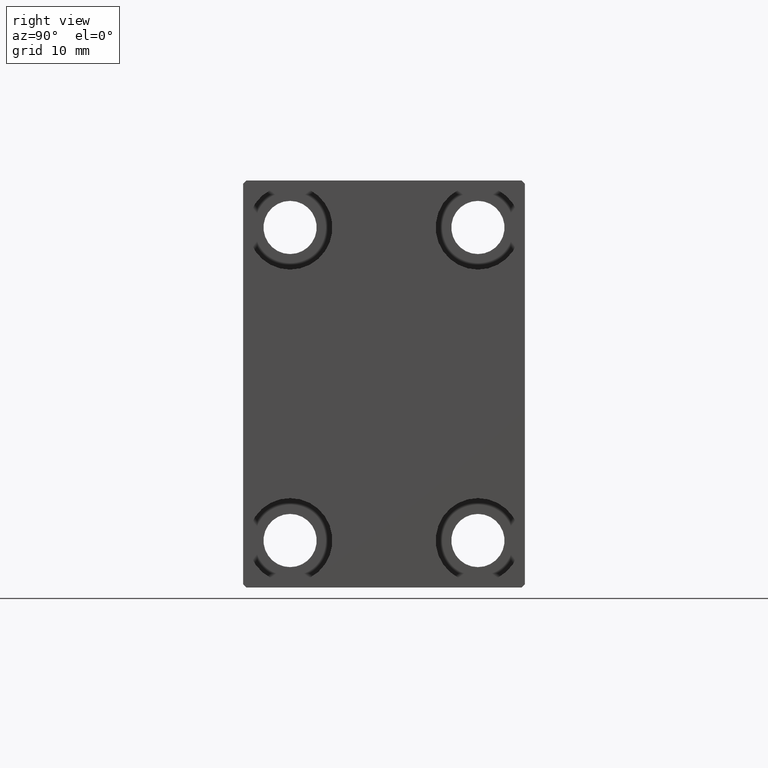
[diagram: clean part render]
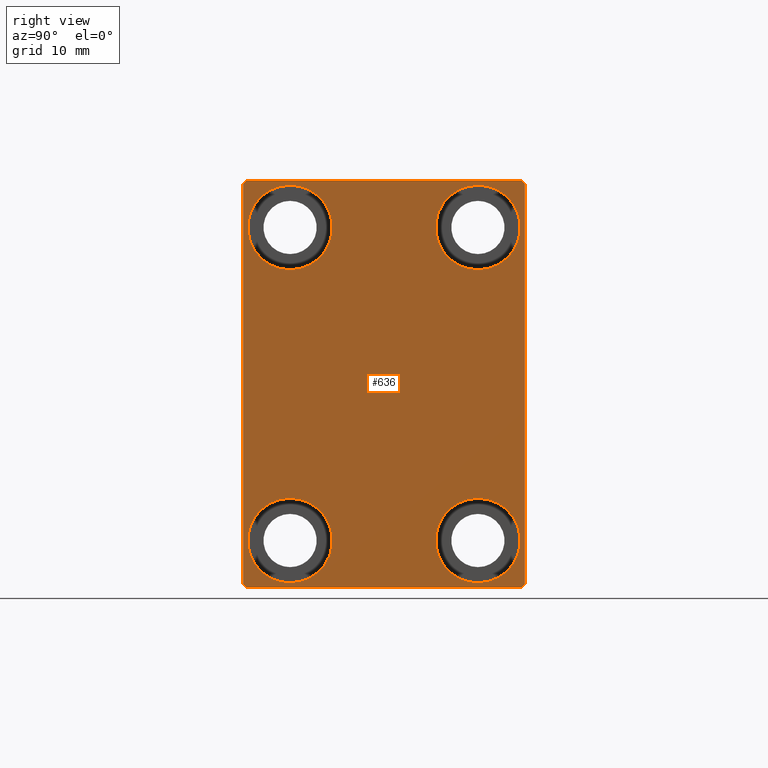
[diagram: same view with one face highlighted and labeled with its STEP entity id]
A machine part, right view. The second image highlights one B-rep face of the part: STEP entity #636.
In plain terms, the highlighted planar face has unit normal (1, 0, 0).
Its self-contained STEP definition (entity closure, byte-faithful):
#224 = CIRCLE ( 'NONE', #35042, 6.749999999999999112 ) ;
#282 = DIRECTION ( 'NONE',  ( 0.000000000000000000, 1.000000000000000000, 0.000000000000000000 ) ) ;
#593 = LINE ( 'NONE', #27727, #884 ) ;
#636 = ADVANCED_FACE ( 'NONE', ( #21501, #14802, #6124, #22605, #33057 ), #39733, .T. ) ;
#884 = VECTOR ( 'NONE', #41306, 1000.000000000000000 ) ;
#917 = EDGE_CURVE ( 'NONE', #8266, #22688, #24437, .T. ) ;
#1011 = CARTESIAN_POINT ( 'NONE',  ( 75.00000000000000000, -14.99999999999999645, 18.25000000000000355 ) ) ;
#1020 = EDGE_CURVE ( 'NONE', #19218, #33377, #4318, .T. ) ;
#1537 = CARTESIAN_POINT ( 'NONE',  ( 75.00000000000000000, 21.99999999999998579, -32.50000000000000711 ) ) ;
#1634 = DIRECTION ( 'NONE',  ( -0.000000000000000000, -0.7071067811865525687, 0.7071067811865425767 ) ) ;
#1945 = DIRECTION ( 'NONE',  ( 0.000000000000000000, 0.000000000000000000, 1.000000000000000000 ) ) ;
#2379 = VECTOR ( 'NONE', #1634, 999.9999999999998863 ) ;
#2813 = DIRECTION ( 'NONE',  ( -1.000000000000000000, -0.000000000000000000, -0.000000000000000000 ) ) ;
#2840 = ORIENTED_EDGE ( 'NONE', *, *, #3370, .T. ) ;
#3259 = EDGE_LOOP ( 'NONE', ( #18268, #2840 ) ) ;
#3370 = EDGE_CURVE ( 'NONE', #10602, #38379, #7444, .T. ) ;
#3612 = CARTESIAN_POINT ( 'NONE',  ( 75.00000000000000000, -22.50000000000000711, -32.50000000000000711 ) ) ;
#4073 = ORIENTED_EDGE ( 'NONE', *, *, #39404, .T. ) ;
#4107 = CARTESIAN_POINT ( 'NONE',  ( 75.00000000000000000, 15.00000000000000355, 18.25000000000000355 ) ) ;
#4318 = LINE ( 'NONE', #28781, #2379 ) ;
#4937 = ORIENTED_EDGE ( 'NONE', *, *, #17917, .T. ) ;
#5100 = ORIENTED_EDGE ( 'NONE', *, *, #8192, .T. ) ;
#5226 = AXIS2_PLACEMENT_3D ( 'NONE', #25227, #8531, #38804 ) ;
#6007 = ORIENTED_EDGE ( 'NONE', *, *, #11963, .T. ) ;
#6124 = FACE_BOUND ( 'NONE', #3259, .T. ) ;
#6210 = ORIENTED_EDGE ( 'NONE', *, *, #8758, .T. ) ;
#6425 = ORIENTED_EDGE ( 'NONE', *, *, #30994, .T. ) ;
#6952 = AXIS2_PLACEMENT_3D ( 'NONE', #19006, #35705, #28587 ) ;
#7444 = CIRCLE ( 'NONE', #35871, 6.749999999999999112 ) ;
#7514 = ORIENTED_EDGE ( 'NONE', *, *, #38397, .T. ) ;
#8192 = EDGE_CURVE ( 'NONE', #15228, #10877, #12506, .T. ) ;
#8266 = VERTEX_POINT ( 'NONE', #29510 ) ;
#8281 = CARTESIAN_POINT ( 'NONE',  ( 75.00000000000000000, 14.99999999999999645, -31.75000000000000000 ) ) ;
#8326 = VECTOR ( 'NONE', #33309, 1000.000000000000000 ) ;
#8531 = DIRECTION ( 'NONE',  ( -1.000000000000000000, -0.000000000000000000, -0.000000000000000000 ) ) ;
#8706 = CIRCLE ( 'NONE', #11558, 6.749999999999999112 ) ;
#8729 = CARTESIAN_POINT ( 'NONE',  ( 75.00000000000000000, -22.00000000000000711, 32.49999999999999289 ) ) ;
#8758 = EDGE_CURVE ( 'NONE', #19136, #36552, #13284, .T. ) ;
#9958 = CARTESIAN_POINT ( 'NONE',  ( 75.00000000000000000, -27.25000000000000711, 27.25000000000000711 ) ) ;
#10602 = VERTEX_POINT ( 'NONE', #22471 ) ;
#10877 = VERTEX_POINT ( 'NONE', #20156 ) ;
#10913 = AXIS2_PLACEMENT_3D ( 'NONE', #19279, #2813, #12159 ) ;
#11255 = CARTESIAN_POINT ( 'NONE',  ( 75.00000000000000000, -15.00000000000000355, -25.00000000000000000 ) ) ;
#11432 = DIRECTION ( 'NONE',  ( -1.000000000000000000, -0.000000000000000000, -0.000000000000000000 ) ) ;
#11558 = AXIS2_PLACEMENT_3D ( 'NONE', #11255, #21282, #24839 ) ;
#11923 = DIRECTION ( 'NONE',  ( -1.000000000000000000, -0.000000000000000000, -0.000000000000000000 ) ) ;
#11950 = CARTESIAN_POINT ( 'NONE',  ( 75.00000000000000000, 15.00000000000000355, 25.00000000000000000 ) ) ;
#11963 = EDGE_CURVE ( 'NONE', #36552, #34705, #42664, .T. ) ;
#12159 = DIRECTION ( 'NONE',  ( 0.000000000000000000, 0.000000000000000000, 1.000000000000000000 ) ) ;
#12506 = CIRCLE ( 'NONE', #43082, 6.749999999999999112 ) ;
#12812 = DIRECTION ( 'NONE',  ( -1.000000000000000000, -0.000000000000000000, -0.000000000000000000 ) ) ;
#13284 = LINE ( 'NONE', #9958, #18188 ) ;
#13994 = ORIENTED_EDGE ( 'NONE', *, *, #34222, .T. ) ;
#14540 = DIRECTION ( 'NONE',  ( 0.000000000000000000, 0.000000000000000000, 1.000000000000000000 ) ) ;
#14588 = VERTEX_POINT ( 'NONE', #27145 ) ;
#14802 = FACE_BOUND ( 'NONE', #20767, .T. ) ;
#15228 = VERTEX_POINT ( 'NONE', #8281 ) ;
#15856 = EDGE_CURVE ( 'NONE', #43030, #19218, #22409, .T. ) ;
#17917 = EDGE_CURVE ( 'NONE', #25242, #14588, #18314, .T. ) ;
#18046 = CARTESIAN_POINT ( 'NONE',  ( 75.00000000000000000, -27.25000000000000711, -27.25000000000000711 ) ) ;
#18188 = VECTOR ( 'NONE', #23539, 1000.000000000000114 ) ;
#18268 = ORIENTED_EDGE ( 'NONE', *, *, #35936, .T. ) ;
#18314 = CIRCLE ( 'NONE', #6952, 6.749999999999999112 ) ;
#19006 = CARTESIAN_POINT ( 'NONE',  ( 75.00000000000000000, -14.99999999999999645, 25.00000000000000000 ) ) ;
#19136 = VERTEX_POINT ( 'NONE', #8729 ) ;
#19218 = VERTEX_POINT ( 'NONE', #39221 ) ;
#19279 = CARTESIAN_POINT ( 'NONE',  ( 75.00000000000000000, -14.99999999999999645, 25.00000000000000000 ) ) ;
#20156 = CARTESIAN_POINT ( 'NONE',  ( 75.00000000000000000, 14.99999999999999645, -18.25000000000000355 ) ) ;
#20524 = LINE ( 'NONE', #3612, #26525 ) ;
#20604 = CARTESIAN_POINT ( 'NONE',  ( 75.00000000000000000, 22.50000000000000000, -32.00000000000000711 ) ) ;
#20691 = EDGE_LOOP ( 'NONE', ( #32049, #33610 ) ) ;
#20736 = ORIENTED_EDGE ( 'NONE', *, *, #1020, .T. ) ;
#20767 = EDGE_LOOP ( 'NONE', ( #4937, #25416 ) ) ;
#21282 = DIRECTION ( 'NONE',  ( -1.000000000000000000, -0.000000000000000000, -0.000000000000000000 ) ) ;
#21501 = FACE_BOUND ( 'NONE', #26951, .T. ) ;
#21869 = CARTESIAN_POINT ( 'NONE',  ( 75.00000000000000000, 22.00000000000000711, 32.50000000000000000 ) ) ;
#22170 = DIRECTION ( 'NONE',  ( 0.000000000000000000, 0.000000000000000000, 1.000000000000000000 ) ) ;
#22386 = CARTESIAN_POINT ( 'NONE',  ( 75.00000000000000000, 0.000000000000000000, 0.000000000000000000 ) ) ;
#22409 = LINE ( 'NONE', #42650, #24724 ) ;
#22471 = CARTESIAN_POINT ( 'NONE',  ( 75.00000000000000000, 15.00000000000000355, 31.75000000000000000 ) ) ;
#22605 = FACE_BOUND ( 'NONE', #20691, .T. ) ;
#22688 = VERTEX_POINT ( 'NONE', #42968 ) ;
#23030 = CARTESIAN_POINT ( 'NONE',  ( 75.00000000000000000, -22.00000000000000711, -32.50000000000000711 ) ) ;
#23502 = DIRECTION ( 'NONE',  ( -0.000000000000000000, 0.7071067811865474617, 0.7071067811865474617 ) ) ;
#23539 = DIRECTION ( 'NONE',  ( 0.000000000000000000, -0.7071067811865474617, -0.7071067811865474617 ) ) ;
#23721 = LINE ( 'NONE', #30386, #35047 ) ;
#24344 = VECTOR ( 'NONE', #31416, 1000.000000000000114 ) ;
#24437 = CIRCLE ( 'NONE', #5226, 6.749999999999999112 ) ;
#24724 = VECTOR ( 'NONE', #31974, 1000.000000000000000 ) ;
#24839 = DIRECTION ( 'NONE',  ( 0.000000000000000000, 0.000000000000000000, 1.000000000000000000 ) ) ;
#25227 = CARTESIAN_POINT ( 'NONE',  ( 75.00000000000000000, -15.00000000000000355, -25.00000000000000000 ) ) ;
#25242 = VERTEX_POINT ( 'NONE', #1011 ) ;
#25416 = ORIENTED_EDGE ( 'NONE', *, *, #35886, .T. ) ;
#25609 = ORIENTED_EDGE ( 'NONE', *, *, #32358, .T. ) ;
#25751 = DIRECTION ( 'NONE',  ( 0.000000000000000000, 0.000000000000000000, 1.000000000000000000 ) ) ;
#25755 = DIRECTION ( 'NONE',  ( -1.000000000000000000, -0.000000000000000000, -0.000000000000000000 ) ) ;
#25840 = AXIS2_PLACEMENT_3D ( 'NONE', #22386, #32620, #26366 ) ;
#26366 = DIRECTION ( 'NONE',  ( 0.000000000000000000, 0.000000000000000000, -1.000000000000000000 ) ) ;
#26411 = CARTESIAN_POINT ( 'NONE',  ( 75.00000000000000000, -22.50000000000000711, 32.49999999999999289 ) ) ;
#26525 = VECTOR ( 'NONE', #282, 1000.000000000000000 ) ;
#26951 = EDGE_LOOP ( 'NONE', ( #5100, #7514 ) ) ;
#27145 = CARTESIAN_POINT ( 'NONE',  ( 75.00000000000000000, -14.99999999999999645, 31.75000000000000000 ) ) ;
#27727 = CARTESIAN_POINT ( 'NONE',  ( 75.00000000000000000, 22.49999999999999289, 32.50000000000000000 ) ) ;
#28587 = DIRECTION ( 'NONE',  ( 0.000000000000000000, 0.000000000000000000, 1.000000000000000000 ) ) ;
#28781 = CARTESIAN_POINT ( 'NONE',  ( 75.00000000000000000, 27.24999999999985079, 27.25000000000023093 ) ) ;
#29287 = CIRCLE ( 'NONE', #10913, 6.749999999999999112 ) ;
#29510 = CARTESIAN_POINT ( 'NONE',  ( 75.00000000000000000, -15.00000000000000355, -18.25000000000000355 ) ) ;
#29742 = CARTESIAN_POINT ( 'NONE',  ( 75.00000000000000000, 15.00000000000000355, 25.00000000000000000 ) ) ;
#30386 = CARTESIAN_POINT ( 'NONE',  ( 75.00000000000000000, 27.25000000000000355, -27.25000000000000355 ) ) ;
#30994 = EDGE_CURVE ( 'NONE', #33377, #19136, #593, .T. ) ;
#31416 = DIRECTION ( 'NONE',  ( -0.000000000000000000, 0.7071067811865474617, -0.7071067811865474617 ) ) ;
#31974 = DIRECTION ( 'NONE',  ( 0.000000000000000000, -1.067522139062650425E-16, 1.000000000000000000 ) ) ;
#31998 = VERTEX_POINT ( 'NONE', #23030 ) ;
#32049 = ORIENTED_EDGE ( 'NONE', *, *, #36730, .T. ) ;
#32358 = EDGE_CURVE ( 'NONE', #34705, #31998, #34756, .T. ) ;
#32620 = DIRECTION ( 'NONE',  ( 1.000000000000000000, 0.000000000000000000, 0.000000000000000000 ) ) ;
#32661 = CARTESIAN_POINT ( 'NONE',  ( 75.00000000000000000, -22.50000000000000711, 32.00000000000000711 ) ) ;
#33057 = FACE_OUTER_BOUND ( 'NONE', #36106, .T. ) ;
#33309 = DIRECTION ( 'NONE',  ( 0.000000000000000000, 0.000000000000000000, -1.000000000000000000 ) ) ;
#33377 = VERTEX_POINT ( 'NONE', #21869 ) ;
#33610 = ORIENTED_EDGE ( 'NONE', *, *, #917, .T. ) ;
#33804 = CARTESIAN_POINT ( 'NONE',  ( 75.00000000000000000, -22.50000000000000711, -32.00000000000000711 ) ) ;
#34222 = EDGE_CURVE ( 'NONE', #39858, #43030, #23721, .T. ) ;
#34705 = VERTEX_POINT ( 'NONE', #33804 ) ;
#34756 = LINE ( 'NONE', #18046, #24344 ) ;
#34985 = CIRCLE ( 'NONE', #40660, 6.749999999999999112 ) ;
#35042 = AXIS2_PLACEMENT_3D ( 'NONE', #38157, #11432, #14540 ) ;
#35047 = VECTOR ( 'NONE', #23502, 1000.000000000000114 ) ;
#35705 = DIRECTION ( 'NONE',  ( -1.000000000000000000, -0.000000000000000000, -0.000000000000000000 ) ) ;
#35871 = AXIS2_PLACEMENT_3D ( 'NONE', #11950, #25755, #1945 ) ;
#35886 = EDGE_CURVE ( 'NONE', #14588, #25242, #29287, .T. ) ;
#35936 = EDGE_CURVE ( 'NONE', #38379, #10602, #34985, .T. ) ;
#36106 = EDGE_LOOP ( 'NONE', ( #6425, #6210, #6007, #25609, #4073, #13994, #37368, #20736 ) ) ;
#36552 = VERTEX_POINT ( 'NONE', #32661 ) ;
#36730 = EDGE_CURVE ( 'NONE', #22688, #8266, #8706, .T. ) ;
#37368 = ORIENTED_EDGE ( 'NONE', *, *, #15856, .T. ) ;
#38157 = CARTESIAN_POINT ( 'NONE',  ( 75.00000000000000000, 14.99999999999999645, -25.00000000000000000 ) ) ;
#38379 = VERTEX_POINT ( 'NONE', #4107 ) ;
#38397 = EDGE_CURVE ( 'NONE', #10877, #15228, #224, .T. ) ;
#38804 = DIRECTION ( 'NONE',  ( 0.000000000000000000, 0.000000000000000000, 1.000000000000000000 ) ) ;
#39221 = CARTESIAN_POINT ( 'NONE',  ( 75.00000000000000000, 22.49999999999999289, 32.00000000000002132 ) ) ;
#39404 = EDGE_CURVE ( 'NONE', #31998, #39858, #20524, .T. ) ;
#39733 = PLANE ( 'NONE',  #25840 ) ;
#39858 = VERTEX_POINT ( 'NONE', #1537 ) ;
#40660 = AXIS2_PLACEMENT_3D ( 'NONE', #29742, #12812, #25751 ) ;
#41306 = DIRECTION ( 'NONE',  ( 0.000000000000000000, -1.000000000000000000, -1.541976423090495387E-16 ) ) ;
#41987 = CARTESIAN_POINT ( 'NONE',  ( 75.00000000000000000, 14.99999999999999645, -25.00000000000000000 ) ) ;
#42650 = CARTESIAN_POINT ( 'NONE',  ( 75.00000000000000000, 22.50000000000000000, -32.50000000000000711 ) ) ;
#42664 = LINE ( 'NONE', #26411, #8326 ) ;
#42968 = CARTESIAN_POINT ( 'NONE',  ( 75.00000000000000000, -15.00000000000000355, -31.75000000000000000 ) ) ;
#43030 = VERTEX_POINT ( 'NONE', #20604 ) ;
#43082 = AXIS2_PLACEMENT_3D ( 'NONE', #41987, #11923, #22170 ) ;